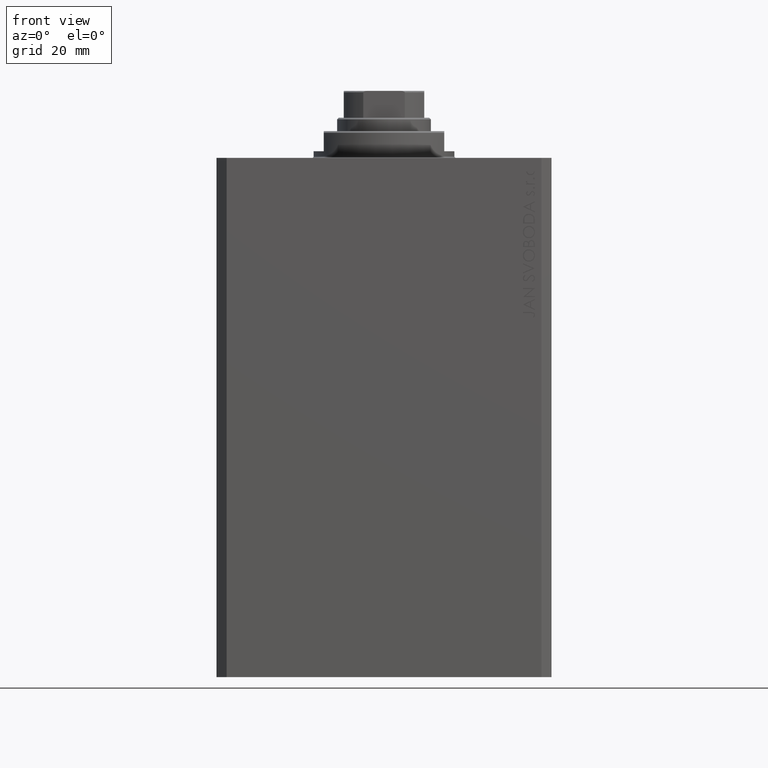
[diagram: clean part render]
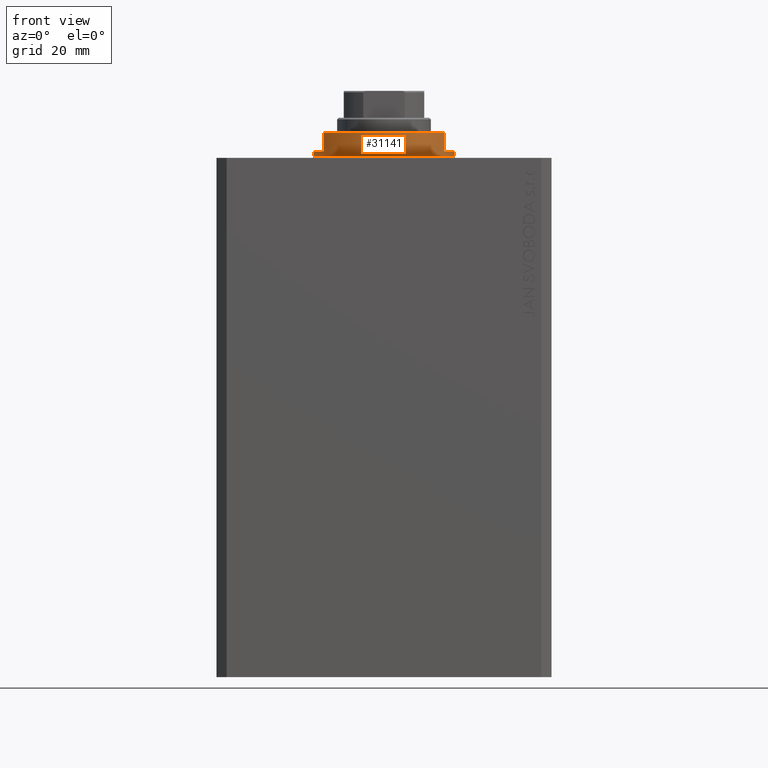
[diagram: same view with one face highlighted and labeled with its STEP entity id]
A machine part, front view. The second image highlights one B-rep face of the part: STEP entity #31141.
In plain terms, the highlighted cylindrical surface (partial cylindrical patch) has radius 21 mm, axis along (0, 0, -1).
Its self-contained STEP definition (entity closure, byte-faithful):
#264 = CARTESIAN_POINT ( 'NONE',  ( -18.00000000000000000, -10.81665382639197048, -7.500000000000017764 ) ) ;
#1399 = EDGE_CURVE ( 'NONE', #16056, #23056, #7050, .T. ) ;
#1985 = LINE ( 'NONE', #20353, #41004 ) ;
#2000 = VERTEX_POINT ( 'NONE', #264 ) ;
#2091 = CARTESIAN_POINT ( 'NONE',  ( 18.00000000000000000, -10.81665382639197048, -7.500000000000016875 ) ) ;
#2849 = EDGE_CURVE ( 'NONE', #36610, #16056, #19130, .T. ) ;
#4620 = LINE ( 'NONE', #14882, #7322 ) ;
#4862 = AXIS2_PLACEMENT_3D ( 'NONE', #42684, #45802, #42228 ) ;
#6118 = ORIENTED_EDGE ( 'NONE', *, *, #2849, .F. ) ;
#6253 = CARTESIAN_POINT ( 'NONE',  ( -18.00000000000000000, -10.81665382639197048, -8.000000000000000000 ) ) ;
#6258 = DIRECTION ( 'NONE',  ( -0.000000000000000000, -0.000000000000000000, 1.000000000000000000 ) ) ;
#7050 = LINE ( 'NONE', #36408, #42747 ) ;
#7261 = CIRCLE ( 'NONE', #46141, 21.00000000000000000 ) ;
#7322 = VECTOR ( 'NONE', #18694, 1000.000000000000000 ) ;
#8263 = VERTEX_POINT ( 'NONE', #44745 ) ;
#8705 = ORIENTED_EDGE ( 'NONE', *, *, #37394, .F. ) ;
#10437 = ORIENTED_EDGE ( 'NONE', *, *, #1399, .F. ) ;
#10532 = DIRECTION ( 'NONE',  ( 0.000000000000000000, 0.000000000000000000, -1.000000000000000000 ) ) ;
#11417 = ORIENTED_EDGE ( 'NONE', *, *, #12265, .F. ) ;
#12265 = EDGE_CURVE ( 'NONE', #25103, #16958, #34573, .T. ) ;
#12799 = VECTOR ( 'NONE', #10532, 1000.000000000000000 ) ;
#13489 = DIRECTION ( 'NONE',  ( 1.000000000000000000, 0.000000000000000000, 0.000000000000000000 ) ) ;
#14882 = CARTESIAN_POINT ( 'NONE',  ( -21.00000000000000000, 2.571758278209441661E-15, -8.000000000000000000 ) ) ;
#15551 = CARTESIAN_POINT ( 'NONE',  ( -21.00000000000000000, 2.571758278209441661E-15, -0.5000000000000004441 ) ) ;
#16056 = VERTEX_POINT ( 'NONE', #29874 ) ;
#16958 = VERTEX_POINT ( 'NONE', #23232 ) ;
#17070 = CARTESIAN_POINT ( 'NONE',  ( 0.000000000000000000, 0.000000000000000000, -8.000000000000000000 ) ) ;
#17305 = DIRECTION ( 'NONE',  ( -0.000000000000000000, -0.000000000000000000, 1.000000000000000000 ) ) ;
#17714 = ORIENTED_EDGE ( 'NONE', *, *, #33513, .T. ) ;
#18261 = DIRECTION ( 'NONE',  ( 0.000000000000000000, 0.000000000000000000, -1.000000000000000000 ) ) ;
#18694 = DIRECTION ( 'NONE',  ( -0.000000000000000000, -0.000000000000000000, 1.000000000000000000 ) ) ;
#18880 = EDGE_CURVE ( 'NONE', #25103, #2000, #38949, .T. ) ;
#19130 = CIRCLE ( 'NONE', #28294, 21.00000000000000000 ) ;
#19376 = ORIENTED_EDGE ( 'NONE', *, *, #42148, .T. ) ;
#20353 = CARTESIAN_POINT ( 'NONE',  ( 21.00000000000000000, 0.000000000000000000, -8.000000000000000000 ) ) ;
#20938 = DIRECTION ( 'NONE',  ( -0.000000000000000000, -0.000000000000000000, -1.000000000000000000 ) ) ;
#23056 = VERTEX_POINT ( 'NONE', #2091 ) ;
#23232 = CARTESIAN_POINT ( 'NONE',  ( -21.00000000000000000, 2.571758278209441661E-15, -2.000000000000000000 ) ) ;
#23461 = CARTESIAN_POINT ( 'NONE',  ( -18.00000000000000000, -10.81665382639197048, -2.000000000000000000 ) ) ;
#24465 = VERTEX_POINT ( 'NONE', #15551 ) ;
#24518 = DIRECTION ( 'NONE',  ( 1.000000000000000000, 0.000000000000000000, 0.000000000000000000 ) ) ;
#24716 = CYLINDRICAL_SURFACE ( 'NONE', #26322, 21.00000000000000000 ) ;
#24861 = DIRECTION ( 'NONE',  ( 0.000000000000000000, 0.000000000000000000, -1.000000000000000000 ) ) ;
#25103 = VERTEX_POINT ( 'NONE', #23461 ) ;
#25331 = ORIENTED_EDGE ( 'NONE', *, *, #32052, .T. ) ;
#25499 = AXIS2_PLACEMENT_3D ( 'NONE', #39323, #20938, #24518 ) ;
#26322 = AXIS2_PLACEMENT_3D ( 'NONE', #17070, #17305, #13489 ) ;
#27268 = CARTESIAN_POINT ( 'NONE',  ( 21.00000000000000000, 0.000000000000000000, -2.000000000000000000 ) ) ;
#28294 = AXIS2_PLACEMENT_3D ( 'NONE', #28437, #24861, #39662 ) ;
#28437 = CARTESIAN_POINT ( 'NONE',  ( 0.000000000000000000, 0.000000000000000000, -2.000000000000000000 ) ) ;
#29874 = CARTESIAN_POINT ( 'NONE',  ( 18.00000000000000000, -10.81665382639197048, -2.000000000000000000 ) ) ;
#31141 = ADVANCED_FACE ( 'NONE', ( #36397 ), #24716, .T. ) ;
#32052 = EDGE_CURVE ( 'NONE', #2000, #23056, #7261, .T. ) ;
#33513 = EDGE_CURVE ( 'NONE', #8263, #24465, #33883, .T. ) ;
#33883 = CIRCLE ( 'NONE', #25499, 21.00000000000000000 ) ;
#34573 = CIRCLE ( 'NONE', #4862, 21.00000000000000000 ) ;
#36397 = FACE_OUTER_BOUND ( 'NONE', #43161, .T. ) ;
#36408 = CARTESIAN_POINT ( 'NONE',  ( 18.00000000000000000, -10.81665382639197048, -8.000000000000000000 ) ) ;
#36610 = VERTEX_POINT ( 'NONE', #27268 ) ;
#36658 = ORIENTED_EDGE ( 'NONE', *, *, #18880, .T. ) ;
#37394 = EDGE_CURVE ( 'NONE', #16958, #24465, #4620, .T. ) ;
#38949 = LINE ( 'NONE', #6253, #12799 ) ;
#39323 = CARTESIAN_POINT ( 'NONE',  ( 0.000000000000000000, 0.000000000000000000, -0.5000000000000004441 ) ) ;
#39662 = DIRECTION ( 'NONE',  ( -1.000000000000000000, 0.000000000000000000, 0.000000000000000000 ) ) ;
#40461 = DIRECTION ( 'NONE',  ( 0.000000000000000000, 0.000000000000000000, 1.000000000000000000 ) ) ;
#41004 = VECTOR ( 'NONE', #6258, 1000.000000000000000 ) ;
#41177 = CARTESIAN_POINT ( 'NONE',  ( 0.000000000000000000, 0.000000000000000000, -7.500000000000016875 ) ) ;
#42148 = EDGE_CURVE ( 'NONE', #36610, #8263, #1985, .T. ) ;
#42228 = DIRECTION ( 'NONE',  ( -1.000000000000000000, 0.000000000000000000, 0.000000000000000000 ) ) ;
#42684 = CARTESIAN_POINT ( 'NONE',  ( 0.000000000000000000, 0.000000000000000000, -2.000000000000000000 ) ) ;
#42747 = VECTOR ( 'NONE', #18261, 1000.000000000000000 ) ;
#43161 = EDGE_LOOP ( 'NONE', ( #8705, #11417, #36658, #25331, #10437, #6118, #19376, #17714 ) ) ;
#44745 = CARTESIAN_POINT ( 'NONE',  ( 21.00000000000000000, 0.000000000000000000, -0.5000000000000004441 ) ) ;
#45802 = DIRECTION ( 'NONE',  ( 0.000000000000000000, 0.000000000000000000, -1.000000000000000000 ) ) ;
#45919 = DIRECTION ( 'NONE',  ( -1.000000000000000000, 0.000000000000000000, 0.000000000000000000 ) ) ;
#46141 = AXIS2_PLACEMENT_3D ( 'NONE', #41177, #40461, #45919 ) ;